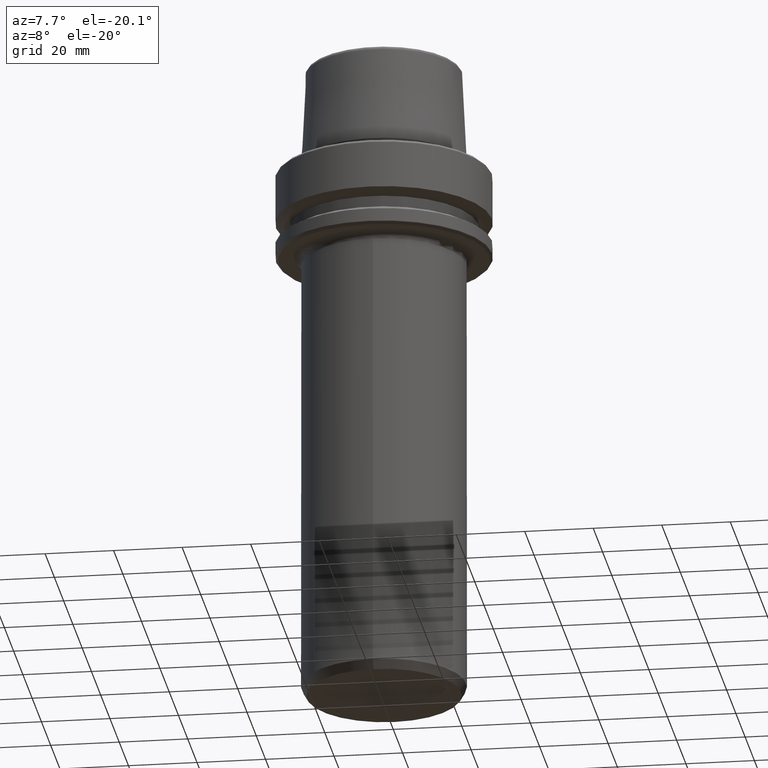
[diagram: clean part render]
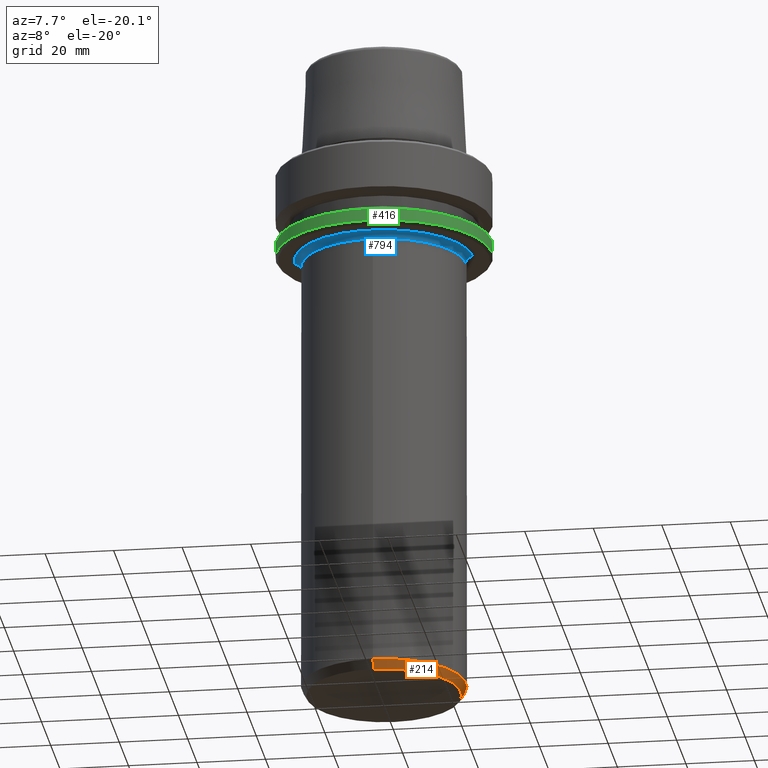
[diagram: same view with three faces highlighted in distinct colors, each labeled with its STEP entity id]
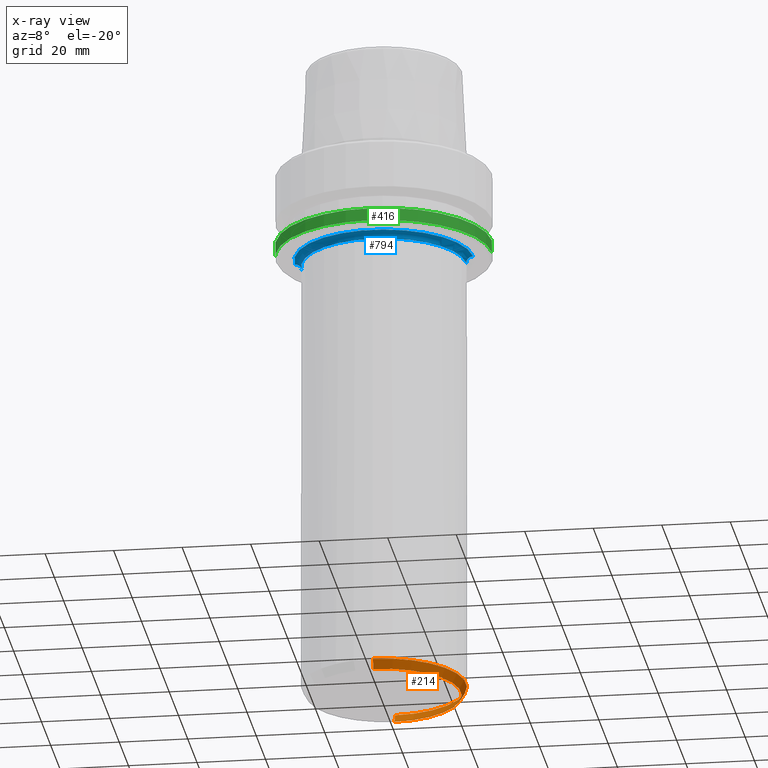
[diagram: x-ray of the same camera — body ghosted, the three highlighted faces saturated]
A machine part, auxiliary view with three faces highlighted in distinct colors.
The next image is the same camera in x-ray (body ghosted, the three faces saturated) — at least one of them is partly hidden behind the body in this view.
Their STEP definitions:

[orange] entity #214 — the highlighted conical surface has half-angle 30 deg.
#42 = DIRECTION ( 'NONE',  ( 6.123233995736747500E-017, 0.4999999999999985000, 0.8660254037844394800 ) ) ;
#82 = EDGE_CURVE ( 'NONE', #167, #835, #1164, .T. ) ;
#167 = VERTEX_POINT ( 'NONE', #551 ) ;
#214 = ADVANCED_FACE ( 'NONE', ( #905 ), #951, .T. ) ;
#292 = CARTESIAN_POINT ( 'NONE',  ( 0.0000000000000000000, 3.061616997868382300E-015, -160.0000000000000000 ) ) ;
#360 = CARTESIAN_POINT ( 'NONE',  ( 0.0000000000000000000, 3.061616997868382300E-015, -160.0000000000000000 ) ) ;
#394 = ORIENTED_EDGE ( 'NONE', *, *, #867, .F. ) ;
#415 = AXIS2_PLACEMENT_3D ( 'NONE', #292, #966, #963 ) ;
#449 = DIRECTION ( 'NONE',  ( 0.0000000000000000000, 1.000000000000000000, 0.0000000000000000000 ) ) ;
#531 = VECTOR ( 'NONE', #640, 1000.000000000000000 ) ;
#544 = CARTESIAN_POINT ( 'NONE',  ( 0.0000000000000000000, -22.49999999999999300, -160.0000000000000000 ) ) ;
#551 = CARTESIAN_POINT ( 'NONE',  ( 2.939152317953647500E-015, 24.00000000000000000, -157.4019237886466800 ) ) ;
#573 = ORIENTED_EDGE ( 'NONE', *, *, #692, .T. ) ;
#582 = LINE ( 'NONE', #616, #847 ) ;
#595 = CIRCLE ( 'NONE', #758, 22.49999999999999600 ) ;
#616 = CARTESIAN_POINT ( 'NONE',  ( 2.755455298081544000E-015, 22.50000000000000000, -160.0000000000000000 ) ) ;
#632 = CARTESIAN_POINT ( 'NONE',  ( 0.0000000000000000000, -23.99999999999999300, -157.4019237886466800 ) ) ;
#640 = DIRECTION ( 'NONE',  ( 0.0000000000000000000, -0.4999999999999985000, 0.8660254037844394800 ) ) ;
#645 = ORIENTED_EDGE ( 'NONE', *, *, #82, .T. ) ;
#671 = DIRECTION ( 'NONE',  ( 0.0000000000000000000, 1.000000000000000000, 0.0000000000000000000 ) ) ;
#692 = EDGE_CURVE ( 'NONE', #825, #167, #582, .T. ) ;
#703 = EDGE_CURVE ( 'NONE', #825, #1268, #595, .T. ) ;
#758 = AXIS2_PLACEMENT_3D ( 'NONE', #360, #1026, #449 ) ;
#825 = VERTEX_POINT ( 'NONE', #1232 ) ;
#835 = VERTEX_POINT ( 'NONE', #632 ) ;
#847 = VECTOR ( 'NONE', #42, 1000.000000000000000 ) ;
#864 = ORIENTED_EDGE ( 'NONE', *, *, #703, .F. ) ;
#867 = EDGE_CURVE ( 'NONE', #1268, #835, #1259, .T. ) ;
#905 = FACE_OUTER_BOUND ( 'NONE', #1039, .T. ) ;
#940 = DIRECTION ( 'NONE',  ( -0.0000000000000000000, 2.284788804379389600E-017, -1.000000000000000000 ) ) ;
#951 = CONICAL_SURFACE ( 'NONE', #415, 22.49999999999999600, 0.5235987755982971500 ) ;
#963 = DIRECTION ( 'NONE',  ( 0.0000000000000000000, -1.000000000000000000, 0.0000000000000000000 ) ) ;
#966 = DIRECTION ( 'NONE',  ( 0.0000000000000000000, -2.284788804379389600E-017, 1.000000000000000000 ) ) ;
#1026 = DIRECTION ( 'NONE',  ( -0.0000000000000000000, 2.284788804379389600E-017, -1.000000000000000000 ) ) ;
#1039 = EDGE_LOOP ( 'NONE', ( #864, #573, #645, #394 ) ) ;
#1041 = CARTESIAN_POINT ( 'NONE',  ( 0.0000000000000000000, -22.49999999999999300, -160.0000000000000000 ) ) ;
#1060 = CARTESIAN_POINT ( 'NONE',  ( 0.0000000000000000000, 3.002256443462137200E-015, -157.4019237886466800 ) ) ;
#1138 = AXIS2_PLACEMENT_3D ( 'NONE', #1060, #940, #671 ) ;
#1164 = CIRCLE ( 'NONE', #1138, 23.99999999999999600 ) ;
#1232 = CARTESIAN_POINT ( 'NONE',  ( 2.847303808017595700E-015, 22.50000000000000000, -160.0000000000000000 ) ) ;
#1259 = LINE ( 'NONE', #544, #531 ) ;
#1268 = VERTEX_POINT ( 'NONE', #1041 ) ;

[blue] entity #794 — the highlighted toroidal blend (fillet) surface has major radius 26 mm and minor (blend) radius 2 mm.
#27 = CARTESIAN_POINT ( 'NONE',  ( 0.0000000000000000000, 4.569577608758799000E-017, -26.00000000000000700 ) ) ;
#44 = DIRECTION ( 'NONE',  ( 0.0000000000000000000, 0.0000000000000000000, -1.000000000000000000 ) ) ;
#45 = CARTESIAN_POINT ( 'NONE',  ( 26.00000000000000400, 4.569577608758799000E-017, -27.99999999999999600 ) ) ;
#138 = ORIENTED_EDGE ( 'NONE', *, *, #1271, .T. ) ;
#140 = DIRECTION ( 'NONE',  ( 1.000000000000000000, 0.0000000000000000000, 0.0000000000000000000 ) ) ;
#150 = CARTESIAN_POINT ( 'NONE',  ( 0.0000000000000000000, 4.569577608758799000E-017, -27.99999999999999600 ) ) ;
#187 = CARTESIAN_POINT ( 'NONE',  ( 24.00000000000000000, 4.569577608758799000E-017, -27.99999999999999600 ) ) ;
#234 = AXIS2_PLACEMENT_3D ( 'NONE', #555, #1258, #656 ) ;
#285 = AXIS2_PLACEMENT_3D ( 'NONE', #617, #44, #718 ) ;
#289 = DIRECTION ( 'NONE',  ( 0.0000000000000000000, -1.000000000000000000, 0.0000000000000000000 ) ) ;
#299 = AXIS2_PLACEMENT_3D ( 'NONE', #27, #705, #140 ) ;
#301 = CIRCLE ( 'NONE', #299, 26.00000000000000400 ) ;
#336 = CIRCLE ( 'NONE', #809, 24.00000000000000000 ) ;
#345 = CARTESIAN_POINT ( 'NONE',  ( 0.0000000000000000000, 4.569577608758799000E-017, -27.99999999999999600 ) ) ;
#365 = EDGE_CURVE ( 'NONE', #625, #823, #336, .T. ) ;
#381 = VERTEX_POINT ( 'NONE', #715 ) ;
#418 = EDGE_LOOP ( 'NONE', ( #818, #138, #1079, #893, #482 ) ) ;
#435 = EDGE_CURVE ( 'NONE', #381, #625, #581, .T. ) ;
#446 = VERTEX_POINT ( 'NONE', #1013 ) ;
#466 = CIRCLE ( 'NONE', #285, 24.00000000000000000 ) ;
#482 = ORIENTED_EDGE ( 'NONE', *, *, #435, .F. ) ;
#520 = DIRECTION ( 'NONE',  ( 1.000000000000000000, 0.0000000000000000000, 0.0000000000000000000 ) ) ;
#548 = VERTEX_POINT ( 'NONE', #954 ) ;
#555 = CARTESIAN_POINT ( 'NONE',  ( -26.00000000000000400, 3.229777453870706400E-015, -27.99999999999999600 ) ) ;
#568 = FACE_OUTER_BOUND ( 'NONE', #418, .T. ) ;
#581 = CIRCLE ( 'NONE', #1108, 2.000000000000001800 ) ;
#617 = CARTESIAN_POINT ( 'NONE',  ( 0.0000000000000000000, 4.569577608758799000E-017, -27.99999999999999600 ) ) ;
#625 = VERTEX_POINT ( 'NONE', #187 ) ;
#656 = DIRECTION ( 'NONE',  ( -1.000000000000000000, 1.224646799147353500E-016, 0.0000000000000000000 ) ) ;
#705 = DIRECTION ( 'NONE',  ( -0.0000000000000000000, -0.0000000000000000000, 1.000000000000000000 ) ) ;
#715 = CARTESIAN_POINT ( 'NONE',  ( 26.00000000000000400, 4.569577608758799000E-017, -26.00000000000000400 ) ) ;
#718 = DIRECTION ( 'NONE',  ( 1.000000000000000000, 0.0000000000000000000, 0.0000000000000000000 ) ) ;
#721 = CARTESIAN_POINT ( 'NONE',  ( 2.939152317953647900E-015, -24.00000000000000000, -27.99999999999999600 ) ) ;
#794 = ADVANCED_FACE ( 'NONE', ( #568 ), #860, .F. ) ;
#809 = AXIS2_PLACEMENT_3D ( 'NONE', #150, #1033, #834 ) ;
#818 = ORIENTED_EDGE ( 'NONE', *, *, #1088, .F. ) ;
#823 = VERTEX_POINT ( 'NONE', #721 ) ;
#834 = DIRECTION ( 'NONE',  ( 1.000000000000000000, 0.0000000000000000000, 0.0000000000000000000 ) ) ;
#860 = TOROIDAL_SURFACE ( 'NONE', #1067, 26.00000000000000400, 2.000000000000000000 ) ;
#893 = ORIENTED_EDGE ( 'NONE', *, *, #365, .F. ) ;
#954 = CARTESIAN_POINT ( 'NONE',  ( -26.00000000000000400, 3.229777453870706400E-015, -26.00000000000000400 ) ) ;
#1013 = CARTESIAN_POINT ( 'NONE',  ( -24.00000000000000000, 3.107312773955971300E-015, -27.99999999999999600 ) ) ;
#1033 = DIRECTION ( 'NONE',  ( 0.0000000000000000000, 0.0000000000000000000, -1.000000000000000000 ) ) ;
#1050 = CIRCLE ( 'NONE', #234, 2.000000000000001800 ) ;
#1067 = AXIS2_PLACEMENT_3D ( 'NONE', #345, #1117, #520 ) ;
#1079 = ORIENTED_EDGE ( 'NONE', *, *, #1170, .F. ) ;
#1088 = EDGE_CURVE ( 'NONE', #548, #381, #301, .T. ) ;
#1108 = AXIS2_PLACEMENT_3D ( 'NONE', #45, #289, #1273 ) ;
#1117 = DIRECTION ( 'NONE',  ( -0.0000000000000000000, -0.0000000000000000000, 1.000000000000000000 ) ) ;
#1170 = EDGE_CURVE ( 'NONE', #823, #446, #466, .T. ) ;
#1258 = DIRECTION ( 'NONE',  ( 1.224646799147353200E-016, 1.000000000000000000, 0.0000000000000000000 ) ) ;
#1271 = EDGE_CURVE ( 'NONE', #548, #446, #1050, .T. ) ;
#1273 = DIRECTION ( 'NONE',  ( 0.0000000000000000000, 0.0000000000000000000, -1.000000000000000000 ) ) ;

[green] entity #416 — the highlighted cylindrical surface (partial cylindrical patch) has radius 31.5 mm, axis along (-0, -0, 1).
#22 = EDGE_CURVE ( 'NONE', #744, #201, #1203, .T. ) ;
#54 = VECTOR ( 'NONE', #384, 1000.000000000000000 ) ;
#121 = DIRECTION ( 'NONE',  ( -0.0000000000000000000, -0.0000000000000000000, 1.000000000000000000 ) ) ;
#184 = ORIENTED_EDGE ( 'NONE', *, *, #22, .T. ) ;
#191 = VERTEX_POINT ( 'NONE', #777 ) ;
#200 = EDGE_CURVE ( 'NONE', #1032, #201, #1222, .T. ) ;
#201 = VERTEX_POINT ( 'NONE', #1176 ) ;
#213 = EDGE_CURVE ( 'NONE', #191, #744, #1121, .T. ) ;
#228 = VECTOR ( 'NONE', #769, 1000.000000000000000 ) ;
#328 = AXIS2_PLACEMENT_3D ( 'NONE', #877, #121, #682 ) ;
#334 = ORIENTED_EDGE ( 'NONE', *, *, #200, .F. ) ;
#371 = DIRECTION ( 'NONE',  ( 1.000000000000000000, 0.0000000000000000000, 0.0000000000000000000 ) ) ;
#384 = DIRECTION ( 'NONE',  ( -0.0000000000000000000, -0.0000000000000000000, 1.000000000000000000 ) ) ;
#396 = CARTESIAN_POINT ( 'NONE',  ( 0.0000000000000000000, 0.0000000000000000000, -21.37749907475931700 ) ) ;
#404 = CARTESIAN_POINT ( 'NONE',  ( 31.50000000000000000, 0.0000000000000000000, 78.96908074195309300 ) ) ;
#416 = ADVANCED_FACE ( 'NONE', ( #745 ), #1072, .T. ) ;
#455 = CARTESIAN_POINT ( 'NONE',  ( 31.50000000000000000, 0.0000000000000000000, -25.03431457505077200 ) ) ;
#497 = DIRECTION ( 'NONE',  ( 1.000000000000000000, 0.0000000000000000000, 0.0000000000000000000 ) ) ;
#526 = EDGE_CURVE ( 'NONE', #191, #1032, #674, .T. ) ;
#536 = CARTESIAN_POINT ( 'NONE',  ( 0.0000000000000000000, 0.0000000000000000000, 78.96908074195309300 ) ) ;
#563 = CARTESIAN_POINT ( 'NONE',  ( -31.50000000000000000, 3.857637417314162700E-015, 78.96908074195309300 ) ) ;
#599 = EDGE_LOOP ( 'NONE', ( #762, #1087, #184, #334 ) ) ;
#635 = CARTESIAN_POINT ( 'NONE',  ( -31.50000000000000000, 3.857637417314162700E-015, -21.37749907475931700 ) ) ;
#674 = LINE ( 'NONE', #563, #54 ) ;
#682 = DIRECTION ( 'NONE',  ( 1.000000000000000000, 0.0000000000000000000, 0.0000000000000000000 ) ) ;
#744 = VERTEX_POINT ( 'NONE', #455 ) ;
#745 = FACE_OUTER_BOUND ( 'NONE', #599, .T. ) ;
#762 = ORIENTED_EDGE ( 'NONE', *, *, #526, .F. ) ;
#769 = DIRECTION ( 'NONE',  ( -0.0000000000000000000, -0.0000000000000000000, 1.000000000000000000 ) ) ;
#777 = CARTESIAN_POINT ( 'NONE',  ( -31.50000000000000000, 3.857637417314161900E-015, -25.03431457505077200 ) ) ;
#795 = DIRECTION ( 'NONE',  ( -0.0000000000000000000, -0.0000000000000000000, 1.000000000000000000 ) ) ;
#862 = AXIS2_PLACEMENT_3D ( 'NONE', #396, #795, #497 ) ;
#877 = CARTESIAN_POINT ( 'NONE',  ( 0.0000000000000000000, 0.0000000000000000000, -25.03431457505077200 ) ) ;
#1032 = VERTEX_POINT ( 'NONE', #635 ) ;
#1072 = CYLINDRICAL_SURFACE ( 'NONE', #1116, 31.50000000000000000 ) ;
#1087 = ORIENTED_EDGE ( 'NONE', *, *, #213, .T. ) ;
#1116 = AXIS2_PLACEMENT_3D ( 'NONE', #536, #1243, #371 ) ;
#1121 = CIRCLE ( 'NONE', #328, 31.50000000000000000 ) ;
#1176 = CARTESIAN_POINT ( 'NONE',  ( 31.50000000000000000, 0.0000000000000000000, -21.37749907475931700 ) ) ;
#1203 = LINE ( 'NONE', #404, #228 ) ;
#1222 = CIRCLE ( 'NONE', #862, 31.50000000000000000 ) ;
#1243 = DIRECTION ( 'NONE',  ( -0.0000000000000000000, -0.0000000000000000000, 1.000000000000000000 ) ) ;